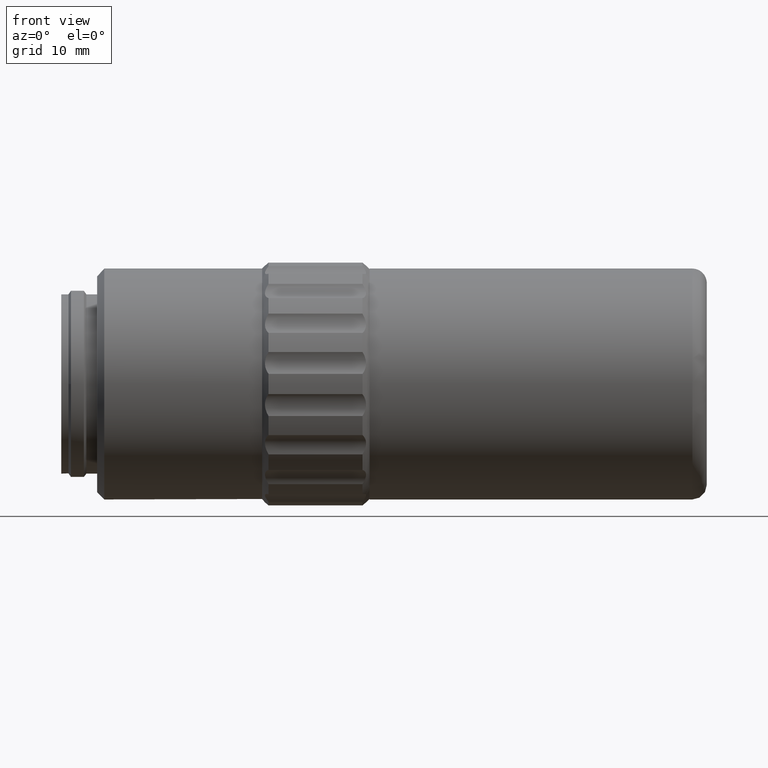
[diagram: clean part render]
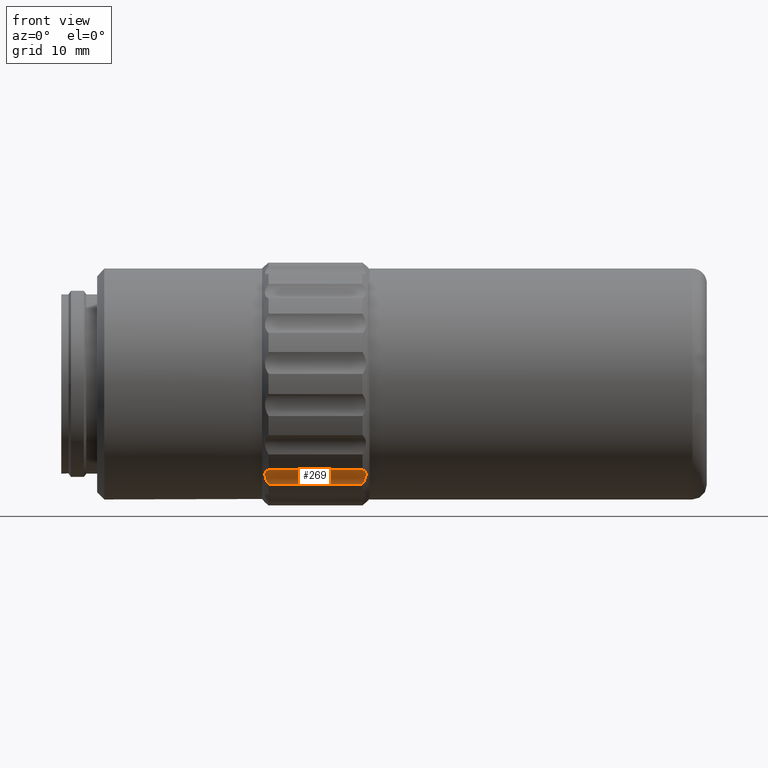
[diagram: same view with one face highlighted and labeled with its STEP entity id]
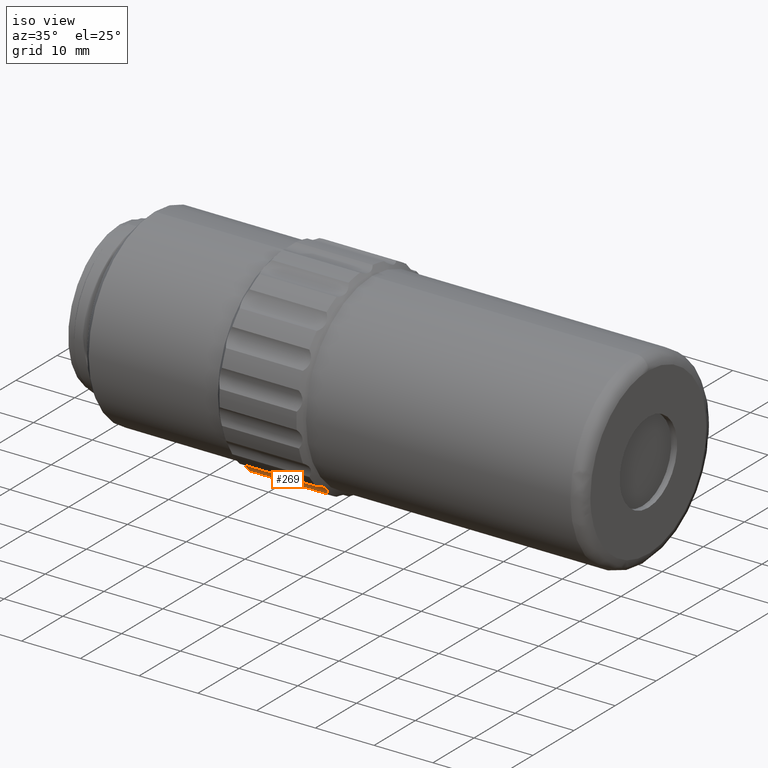
[diagram: same view with one face highlighted and labeled with its STEP entity id]
A machine part, front view. The second image highlights one B-rep face of the part: STEP entity #269.
A second angle (iso view) of the same face is appended — the face is thin or edge-on in the first view.
In plain terms, the highlighted cylindrical surface (edge-blend (fillet) strip) has radius 3 mm, axis along (-1, 0, 0).
Its self-contained STEP definition (entity closure, byte-faithful):
#35 = CARTESIAN_POINT ( 'NONE',  ( 32.93404516599888865, 35.18529463847772121, -12.46115531925905806 ) ) ;
#66 = FACE_OUTER_BOUND ( 'NONE', #161, .T. ) ;
#69 = CARTESIAN_POINT ( 'NONE',  ( 18.90565193394951393, 34.95203119838301831, -12.31632407541565755 ) ) ;
#133 = VERTEX_POINT ( 'NONE', #670 ) ;
#161 = EDGE_LOOP ( 'NONE', ( #1861, #1499, #2082, #1931 ) ) ;
#166 = VERTEX_POINT ( 'NONE', #982 ) ;
#200 = CARTESIAN_POINT ( 'NONE',  ( 32.71832649179923891, 34.44935860872440969, -12.08340433005123593 ) ) ;
#217 = CARTESIAN_POINT ( 'NONE',  ( 19.07378008189503760, 34.45315972681315486, -12.08479540418656484 ) ) ;
#252 = CARTESIAN_POINT ( 'NONE',  ( 19.34685803487879596, 36.32378364731471976, -13.96297718956139811 ) ) ;
#265 = VERTEX_POINT ( 'NONE', #1039 ) ;
#269 = ADVANCED_FACE ( 'NONE', ( #66 ), #385, .F. ) ;
#306 = CARTESIAN_POINT ( 'NONE',  ( 25.94685803487879738, 36.32378364731471265, -13.96297718956139811 ) ) ;
#385 = CYLINDRICAL_SURFACE ( 'NONE', #1405, 2.999999999999999112 ) ;
#407 = CARTESIAN_POINT ( 'NONE',  ( 18.85967090375867627, 35.63071352123775881, -12.83490613950239023 ) ) ;
#420 = VECTOR ( 'NONE', #624, 1000.000000000000000 ) ;
#470 = CARTESIAN_POINT ( 'NONE',  ( 32.59397570363889685, 36.24294634268018456, -13.72771975950780288 ) ) ;
#526 = CARTESIAN_POINT ( 'NONE',  ( 32.94700126034473442, 35.52309574243637513, -12.73030636577401431 ) ) ;
#531 = CARTESIAN_POINT ( 'NONE',  ( 53.58686043487880823, 33.48660361111249983, -14.93786664082010063 ) ) ;
#561 = EDGE_CURVE ( 'NONE', #166, #133, #1949, .T. ) ;
#570 = CARTESIAN_POINT ( 'NONE',  ( 32.93501117040979409, 35.62512614287679469, -12.82915025000381171 ) ) ;
#587 = VECTOR ( 'NONE', #970, 1000.000000000000000 ) ;
#624 = DIRECTION ( 'NONE',  ( -1.000000000000000000, 0.000000000000000000, 0.000000000000000000 ) ) ;
#670 = CARTESIAN_POINT ( 'NONE',  ( 32.44685803487878673, 33.95401115804229875, -11.97450196783888821 ) ) ;
#718 = CARTESIAN_POINT ( 'NONE',  ( 19.19974036611870361, 34.19973174975010011, -12.01325914816416507 ) ) ;
#724 = DIRECTION ( 'NONE',  ( 0.000000000000000000, 0.000000000000000000, 1.000000000000000000 ) ) ;
#735 = EDGE_CURVE ( 'NONE', #133, #1016, #1673, .T. ) ;
#897 = CARTESIAN_POINT ( 'NONE',  ( 18.94098152749739228, 34.82682132065498593, -12.25041840084324996 ) ) ;
#970 = DIRECTION ( 'NONE',  ( 1.000000000000000000, -0.000000000000000000, -0.000000000000000000 ) ) ;
#982 = CARTESIAN_POINT ( 'NONE',  ( 19.34685803487880307, 33.95401115804230585, -11.97450196783888821 ) ) ;
#999 = CARTESIAN_POINT ( 'NONE',  ( 32.59371544402080190, 34.19929705588980795, -12.01319058448289923 ) ) ;
#1016 = VERTEX_POINT ( 'NONE', #1504 ) ;
#1018 = CARTESIAN_POINT ( 'NONE',  ( 32.88671825240743374, 34.94694193895062284, -12.31354536760549223 ) ) ;
#1023 = CARTESIAN_POINT ( 'NONE',  ( 18.85870489934780636, 35.19193332115171557, -12.46565831306566352 ) ) ;
#1039 = CARTESIAN_POINT ( 'NONE',  ( 19.34685803487879596, 36.32378364731471976, -13.96297718956139811 ) ) ;
#1041 = CARTESIAN_POINT ( 'NONE',  ( 18.90699781735015605, 35.81747045796282691, -13.04400552683793713 ) ) ;
#1092 = CARTESIAN_POINT ( 'NONE',  ( 32.44685803487879383, 36.32378364731472686, -13.96297718956140699 ) ) ;
#1132 = CARTESIAN_POINT ( 'NONE',  ( 53.58686043487880823, 33.95401115804229875, -11.97450196783888821 ) ) ;
#1187 = CARTESIAN_POINT ( 'NONE',  ( 18.84700383090775588, 35.52685220674475630, -12.73377765964754893 ) ) ;
#1204 = DIRECTION ( 'NONE',  ( -1.000000000000000000, 0.000000000000000000, 0.000000000000000000 ) ) ;
#1337 = CARTESIAN_POINT ( 'NONE',  ( 32.94671223884983391, 35.30292207748090760, -12.54587797077277322 ) ) ;
#1384 = CARTESIAN_POINT ( 'NONE',  ( 32.88806413580807941, 35.81385022434190546, -13.03947610223929310 ) ) ;
#1403 = CARTESIAN_POINT ( 'NONE',  ( 32.44685803487878673, 33.95401115804229875, -11.97450196783888821 ) ) ;
#1405 = AXIS2_PLACEMENT_3D ( 'NONE', #531, #1204, #724 ) ;
#1416 = CARTESIAN_POINT ( 'NONE',  ( 32.71993598786256996, 36.12848957674106742, -13.49056406336132952 ) ) ;
#1491 = CARTESIAN_POINT ( 'NONE',  ( 32.85210940846931038, 34.82470436459487928, -12.24933554730703378 ) ) ;
#1499 = ORIENTED_EDGE ( 'NONE', *, *, #561, .F. ) ;
#1504 = CARTESIAN_POINT ( 'NONE',  ( 32.44685803487879383, 36.32378364731472686, -13.96297718956140699 ) ) ;
#1511 = CARTESIAN_POINT ( 'NONE',  ( 19.07538957795832246, 36.13051957456375618, -13.49406587643664501 ) ) ;
#1528 = CARTESIAN_POINT ( 'NONE',  ( 18.84671480941283406, 35.30699293778216941, -12.54897458209228844 ) ) ;
#1545 = EDGE_CURVE ( 'NONE', #265, #166, #1840, .T. ) ;
#1673 = B_SPLINE_CURVE_WITH_KNOTS ( 'NONE', 3,
 ( #1403, #999, #200, #1491, #1018, #35, #1337, #526, #570, #1384, #2034, #1416, #470, #1092 ),
 .UNSPECIFIED., .F., .F.,
 ( 4, 2, 2, 2, 2, 2, 4 ),
 ( 1.636534854170084423E-17, 0.0008570537395405636435, 0.001285580609310837171, 0.001714107479081110807, 0.002142634348851384877, 0.002571161218621658296, 0.003428214958162212507 ),
 .UNSPECIFIED. ) ;
#1678 = CARTESIAN_POINT ( 'NONE',  ( 18.94160666128824744, 35.90193111884158128, -13.15323611948972449 ) ) ;
#1695 = CARTESIAN_POINT ( 'NONE',  ( 19.20000062573676658, 36.24308934852177799, -13.72813594343331900 ) ) ;
#1840 = B_SPLINE_CURVE_WITH_KNOTS ( 'NONE', 3,
 ( #252, #1695, #1511, #1678, #1041, #407, #1187, #1528, #1023, #69, #897, #217, #718, #1863 ),
 .UNSPECIFIED., .F., .F.,
 ( 4, 2, 2, 2, 2, 2, 4 ),
 ( 3.469446951953614189E-18, 0.0008570537395405544278, 0.001285580609310831316, 0.001714107479081108422, 0.002142634348851385744, 0.002571161218621662199, 0.003428214958162214242 ),
 .UNSPECIFIED. ) ;
#1861 = ORIENTED_EDGE ( 'NONE', *, *, #735, .F. ) ;
#1863 = CARTESIAN_POINT ( 'NONE',  ( 19.34685803487880307, 33.95401115804230585, -11.97450196783888821 ) ) ;
#1931 = ORIENTED_EDGE ( 'NONE', *, *, #2108, .F. ) ;
#1940 = LINE ( 'NONE', #306, #420 ) ;
#1949 = LINE ( 'NONE', #1132, #587 ) ;
#2034 = CARTESIAN_POINT ( 'NONE',  ( 32.85273454226020107, 35.90049711072168748, -13.15133936029217665 ) ) ;
#2082 = ORIENTED_EDGE ( 'NONE', *, *, #1545, .F. ) ;
#2108 = EDGE_CURVE ( 'NONE', #1016, #265, #1940, .T. ) ;